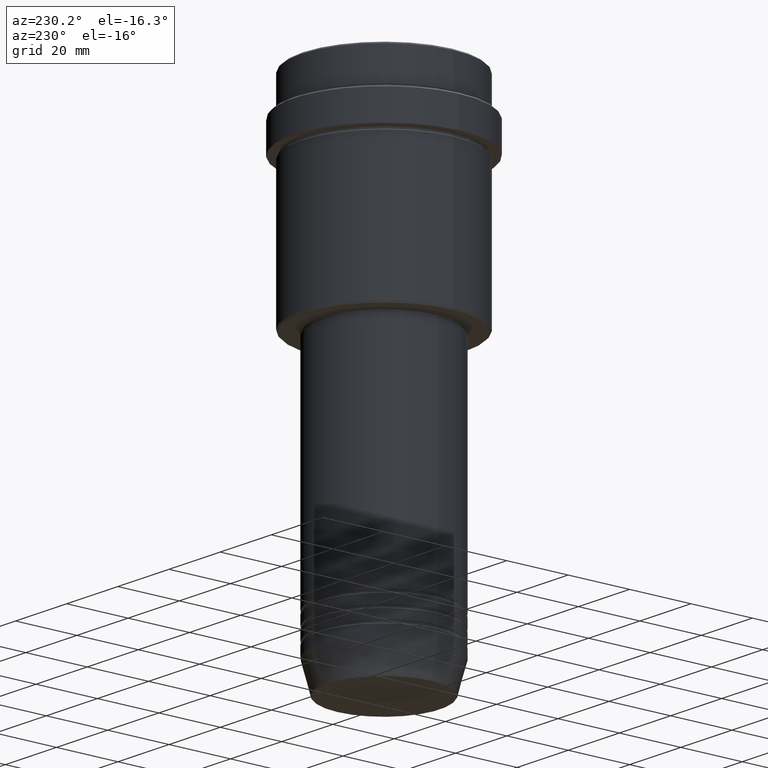
[diagram: clean part render]
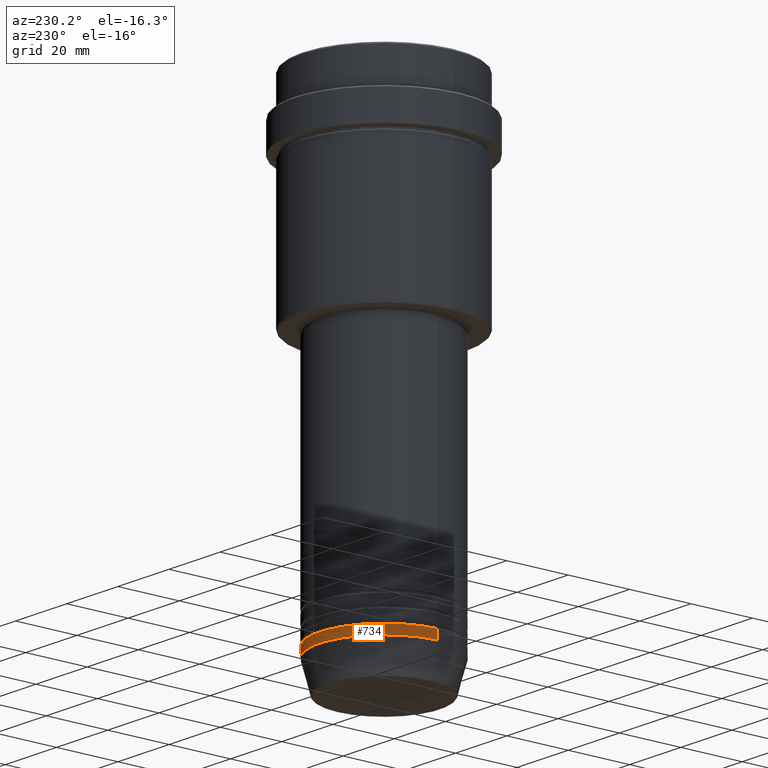
[diagram: same view with one face highlighted and labeled with its STEP entity id]
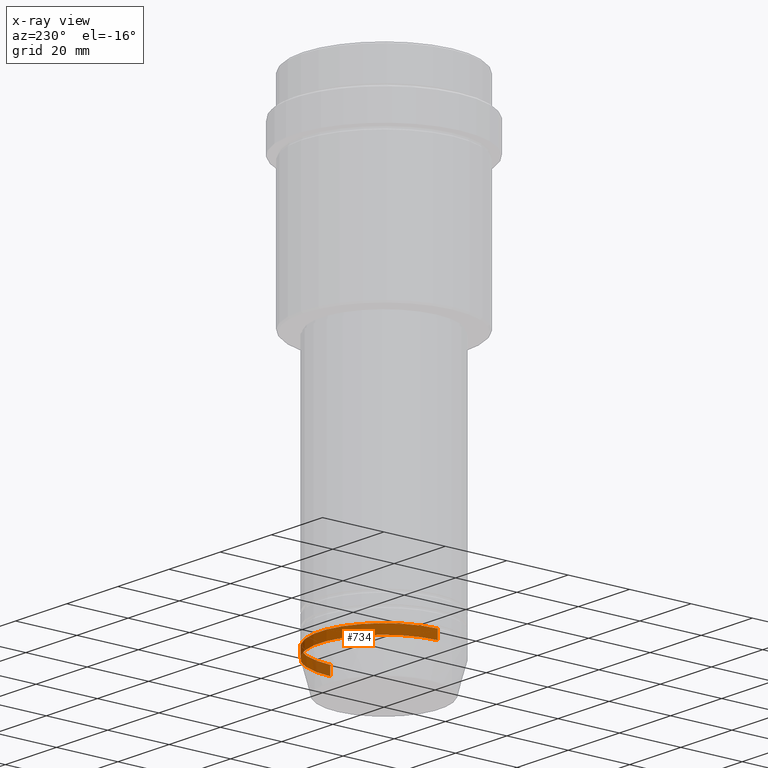
[diagram: x-ray of the same camera — body ghosted, the highlighted face saturated]
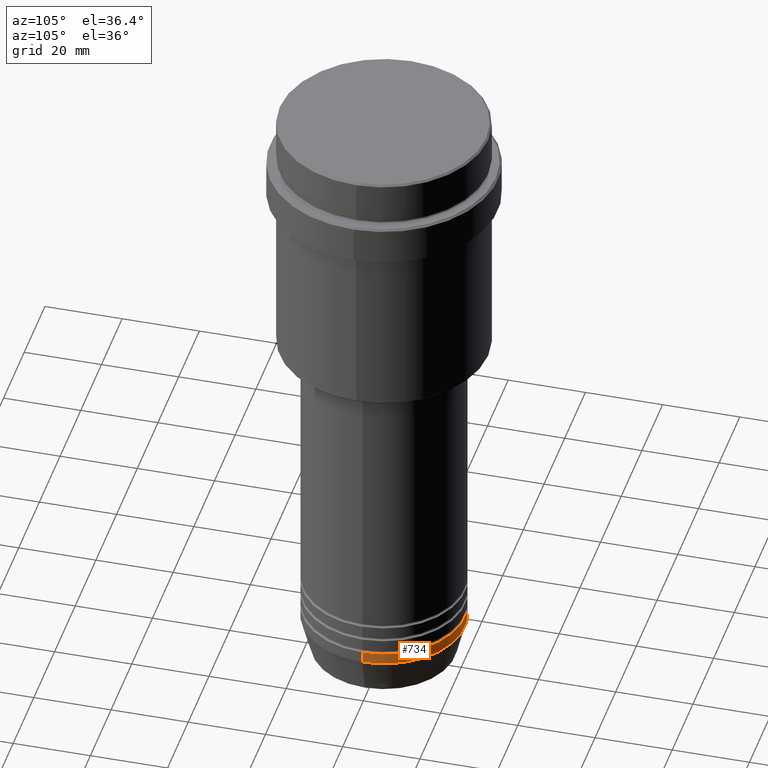
[diagram: same view with one face highlighted and labeled with its STEP entity id]
A machine part, auxiliary view. The second image highlights one B-rep face of the part: STEP entity #734.
The next image is the same camera in x-ray: the body ghosted, the highlighted face saturated — about 11% of this face is hidden behind the body in this view.
A second angle (auxiliary view) of the same face is appended — the face is thin or edge-on in the first view.
In plain terms, the highlighted cylindrical surface (partial cylindrical patch) has radius 21 mm, axis along (-0, -0, 1).
Its self-contained STEP definition (entity closure, byte-faithful):
#11 = EDGE_CURVE ( 'NONE', #747, #569, #233, .T. ) ;
#31 = EDGE_LOOP ( 'NONE', ( #1267, #507, #1200, #1296 ) ) ;
#233 = LINE ( 'NONE', #448, #613 ) ;
#278 = DIRECTION ( 'NONE',  ( -0.000000000000000000, -0.000000000000000000, 1.000000000000000000 ) ) ;
#312 = LINE ( 'NONE', #730, #708 ) ;
#342 = CARTESIAN_POINT ( 'NONE',  ( -21.00000000000000000, 2.571758278209441661E-15, -150.0000000000000000 ) ) ;
#360 = DIRECTION ( 'NONE',  ( -0.000000000000000000, -0.000000000000000000, 1.000000000000000000 ) ) ;
#379 = CARTESIAN_POINT ( 'NONE',  ( 0.000000000000000000, 0.000000000000000000, 0.000000000000000000 ) ) ;
#448 = CARTESIAN_POINT ( 'NONE',  ( 21.00000000000000000, 0.000000000000000000, 0.000000000000000000 ) ) ;
#484 = CARTESIAN_POINT ( 'NONE',  ( 0.000000000000000000, 0.000000000000000000, -153.0000000000000000 ) ) ;
#507 = ORIENTED_EDGE ( 'NONE', *, *, #814, .T. ) ;
#534 = EDGE_CURVE ( 'NONE', #569, #922, #1119, .T. ) ;
#548 = AXIS2_PLACEMENT_3D ( 'NONE', #872, #360, #767 ) ;
#569 = VERTEX_POINT ( 'NONE', #781 ) ;
#608 = FACE_OUTER_BOUND ( 'NONE', #31, .T. ) ;
#613 = VECTOR ( 'NONE', #1219, 1000.000000000000000 ) ;
#664 = EDGE_CURVE ( 'NONE', #747, #1048, #882, .T. ) ;
#699 = DIRECTION ( 'NONE',  ( 1.000000000000000000, 0.000000000000000000, 0.000000000000000000 ) ) ;
#708 = VECTOR ( 'NONE', #1306, 1000.000000000000000 ) ;
#730 = CARTESIAN_POINT ( 'NONE',  ( -21.00000000000000000, 2.571758278209441661E-15, 0.000000000000000000 ) ) ;
#734 = ADVANCED_FACE ( 'NONE', ( #608 ), #1363, .T. ) ;
#747 = VERTEX_POINT ( 'NONE', #1262 ) ;
#752 = AXIS2_PLACEMENT_3D ( 'NONE', #484, #278, #790 ) ;
#767 = DIRECTION ( 'NONE',  ( 1.000000000000000000, 0.000000000000000000, 0.000000000000000000 ) ) ;
#781 = CARTESIAN_POINT ( 'NONE',  ( 21.00000000000000000, 0.000000000000000000, -150.0000000000000000 ) ) ;
#790 = DIRECTION ( 'NONE',  ( 1.000000000000000000, 0.000000000000000000, 0.000000000000000000 ) ) ;
#798 = DIRECTION ( 'NONE',  ( -0.000000000000000000, -0.000000000000000000, 1.000000000000000000 ) ) ;
#814 = EDGE_CURVE ( 'NONE', #1048, #922, #312, .T. ) ;
#856 = AXIS2_PLACEMENT_3D ( 'NONE', #379, #798, #699 ) ;
#872 = CARTESIAN_POINT ( 'NONE',  ( 0.000000000000000000, 0.000000000000000000, -150.0000000000000000 ) ) ;
#882 = CIRCLE ( 'NONE', #752, 21.00000000000000000 ) ;
#922 = VERTEX_POINT ( 'NONE', #342 ) ;
#961 = CARTESIAN_POINT ( 'NONE',  ( -21.00000000000000000, 2.571758278209441661E-15, -153.0000000000000000 ) ) ;
#1048 = VERTEX_POINT ( 'NONE', #961 ) ;
#1119 = CIRCLE ( 'NONE', #548, 21.00000000000000000 ) ;
#1200 = ORIENTED_EDGE ( 'NONE', *, *, #534, .F. ) ;
#1219 = DIRECTION ( 'NONE',  ( -0.000000000000000000, -0.000000000000000000, 1.000000000000000000 ) ) ;
#1262 = CARTESIAN_POINT ( 'NONE',  ( 21.00000000000000000, 0.000000000000000000, -153.0000000000000000 ) ) ;
#1267 = ORIENTED_EDGE ( 'NONE', *, *, #664, .T. ) ;
#1296 = ORIENTED_EDGE ( 'NONE', *, *, #11, .F. ) ;
#1306 = DIRECTION ( 'NONE',  ( -0.000000000000000000, -0.000000000000000000, 1.000000000000000000 ) ) ;
#1363 = CYLINDRICAL_SURFACE ( 'NONE', #856, 21.00000000000000000 ) ;